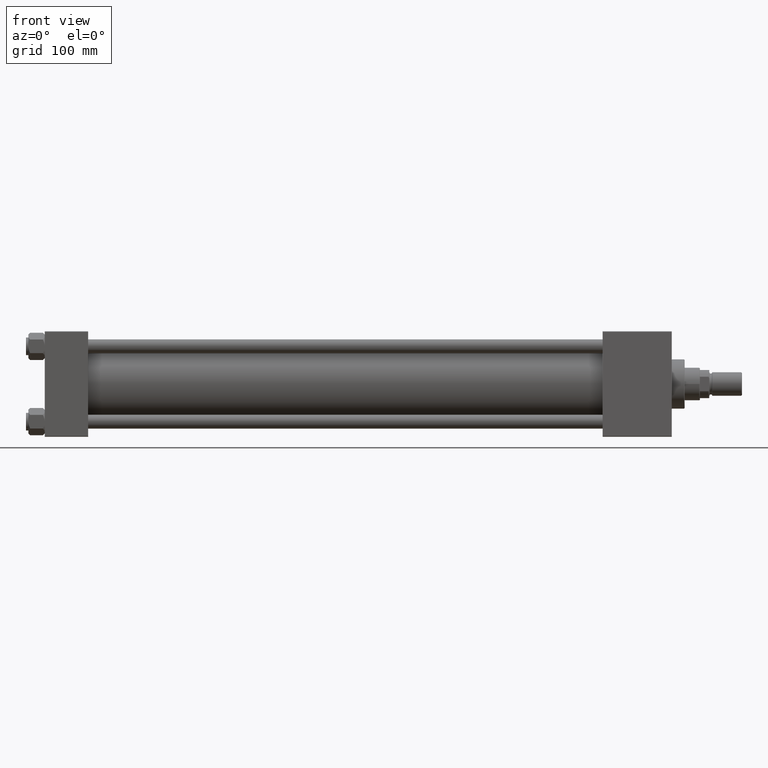
[diagram: clean part render]
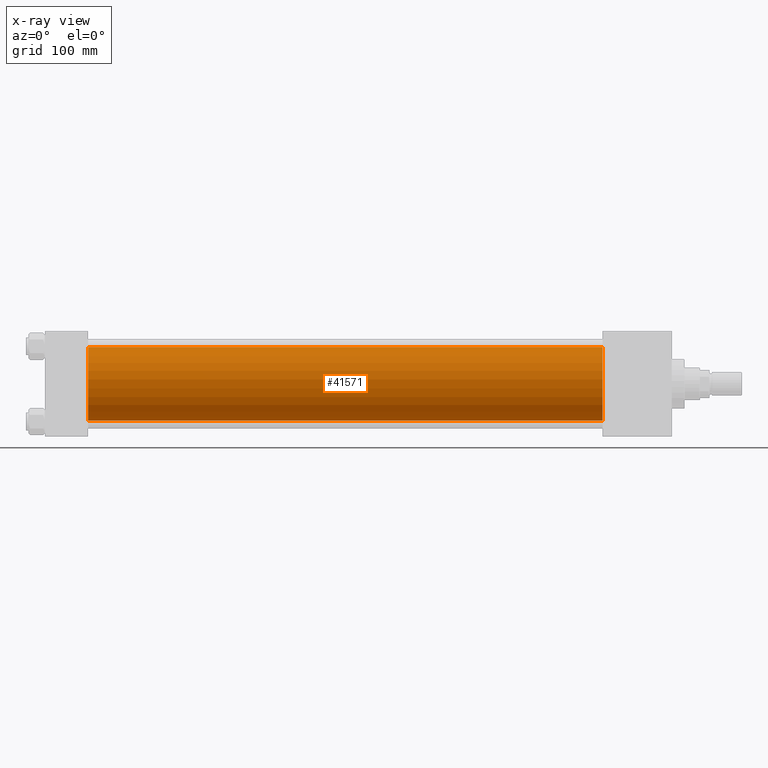
[diagram: x-ray — body ghosted, one internal face saturated and labeled with its STEP entity id]
A machine part, front view, then the same camera in x-ray: the body is ghosted and one INTERNAL B-rep face — a face not visible from any outside direction — is saturated and labeled: STEP entity #41571.
In plain terms, the highlighted cylindrical surface (partial cylindrical patch) has radius 31.5 mm, axis along (-1, -0, -0).
Its self-contained STEP definition (entity closure, byte-faithful):
#1097 = EDGE_CURVE ( 'NONE', #22748, #42638, #14175, .T. ) ;
#1744 = CYLINDRICAL_SURFACE ( 'NONE', #8355, 31.50000000000000000 ) ;
#1771 = CARTESIAN_POINT ( 'NONE',  ( 476.0000000000000000, -2.602085213965210642E-15, 31.50000000000000000 ) ) ;
#2186 = CARTESIAN_POINT ( 'NONE',  ( 476.0000000000000000, 1.255552203348951850E-15, -31.50000000000000000 ) ) ;
#6402 = CARTESIAN_POINT ( 'NONE',  ( 476.0000000000000000, 1.255552203348951850E-15, -31.50000000000000000 ) ) ;
#8355 = AXIS2_PLACEMENT_3D ( 'NONE', #17897, #18417, #10459 ) ;
#10459 = DIRECTION ( 'NONE',  ( 0.000000000000000000, 0.000000000000000000, 1.000000000000000000 ) ) ;
#10747 = VERTEX_POINT ( 'NONE', #49926 ) ;
#11188 = AXIS2_PLACEMENT_3D ( 'NONE', #45071, #36601, #32742 ) ;
#11368 = ORIENTED_EDGE ( 'NONE', *, *, #13724, .F. ) ;
#12726 = VERTEX_POINT ( 'NONE', #2186 ) ;
#13724 = EDGE_CURVE ( 'NONE', #42638, #10747, #23485, .T. ) ;
#14175 = LINE ( 'NONE', #26217, #23195 ) ;
#15573 = CIRCLE ( 'NONE', #44213, 31.50000000000000000 ) ;
#17897 = CARTESIAN_POINT ( 'NONE',  ( 476.0000000000000000, -2.602085213965210642E-15, 0.000000000000000000 ) ) ;
#18417 = DIRECTION ( 'NONE',  ( -1.000000000000000000, -0.000000000000000000, -0.000000000000000000 ) ) ;
#22035 = DIRECTION ( 'NONE',  ( -1.000000000000000000, -0.000000000000000000, -0.000000000000000000 ) ) ;
#22748 = VERTEX_POINT ( 'NONE', #1771 ) ;
#23195 = VECTOR ( 'NONE', #29039, 1000.000000000000000 ) ;
#23485 = CIRCLE ( 'NONE', #11188, 31.50000000000000000 ) ;
#26217 = CARTESIAN_POINT ( 'NONE',  ( 476.0000000000000000, -2.602085213965210642E-15, 31.50000000000000000 ) ) ;
#29039 = DIRECTION ( 'NONE',  ( -1.000000000000000000, -0.000000000000000000, -0.000000000000000000 ) ) ;
#29316 = EDGE_CURVE ( 'NONE', #22748, #12726, #15573, .T. ) ;
#31316 = CARTESIAN_POINT ( 'NONE',  ( 476.0000000000000000, -2.602085213965210642E-15, 0.000000000000000000 ) ) ;
#31644 = CARTESIAN_POINT ( 'NONE',  ( 37.00000000000000000, -2.602085213965210642E-15, 31.50000000000000000 ) ) ;
#32742 = DIRECTION ( 'NONE',  ( 0.000000000000000000, 0.000000000000000000, -1.000000000000000000 ) ) ;
#33014 = VECTOR ( 'NONE', #22035, 1000.000000000000000 ) ;
#36387 = ORIENTED_EDGE ( 'NONE', *, *, #29316, .T. ) ;
#36601 = DIRECTION ( 'NONE',  ( 1.000000000000000000, 0.000000000000000000, 0.000000000000000000 ) ) ;
#36856 = FACE_OUTER_BOUND ( 'NONE', #39364, .T. ) ;
#39364 = EDGE_LOOP ( 'NONE', ( #36387, #46437, #11368, #48437 ) ) ;
#39514 = DIRECTION ( 'NONE',  ( 1.000000000000000000, 0.000000000000000000, 0.000000000000000000 ) ) ;
#41519 = LINE ( 'NONE', #6402, #33014 ) ;
#41571 = ADVANCED_FACE ( 'NONE', ( #36856 ), #1744, .F. ) ;
#42638 = VERTEX_POINT ( 'NONE', #31644 ) ;
#44213 = AXIS2_PLACEMENT_3D ( 'NONE', #31316, #39514, #47451 ) ;
#44802 = EDGE_CURVE ( 'NONE', #12726, #10747, #41519, .T. ) ;
#45071 = CARTESIAN_POINT ( 'NONE',  ( 37.00000000000000000, -2.602085213965210642E-15, 0.000000000000000000 ) ) ;
#46437 = ORIENTED_EDGE ( 'NONE', *, *, #44802, .T. ) ;
#47451 = DIRECTION ( 'NONE',  ( 0.000000000000000000, 0.000000000000000000, -1.000000000000000000 ) ) ;
#48437 = ORIENTED_EDGE ( 'NONE', *, *, #1097, .F. ) ;
#49926 = CARTESIAN_POINT ( 'NONE',  ( 37.00000000000000000, 1.255552203348951850E-15, -31.50000000000000000 ) ) ;